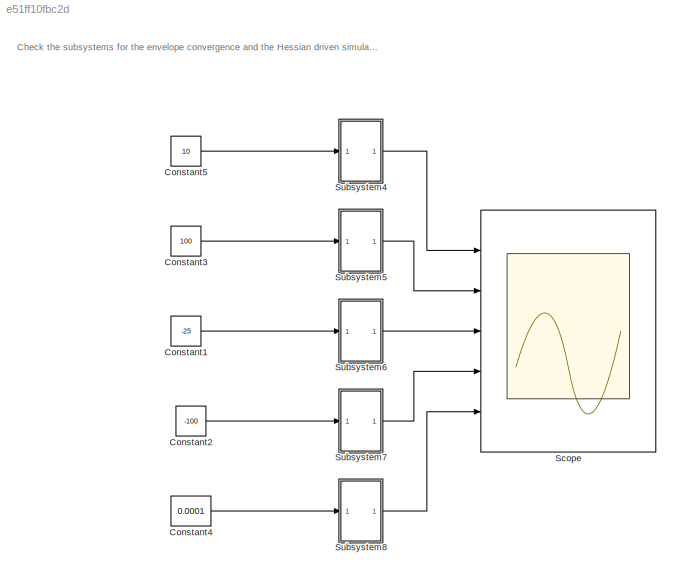
MODEL slx_e51ff10fbc2d
KIND model
CONFIG AbsTol = auto
CONFIG EnableMultiTasking = off
CONFIG FixedStep = .001
CONFIG MaxStep = auto
CONFIG MinStep = auto
CONFIG RelTol = 1e-3
CONFIG SampleTimeConstraint = Unconstrained
CONFIG SolverName = ode1
CONFIG StartTime = 0.0001
CONFIG StopTime = 25
WORKSPACE source: mxarray member
WORKSPACE T: Simulink.Parameter (value not decoded)
BLOCK [Constant] Constant1
  Value = -25
BLOCK [Constant] Constant2
  Value = -100
BLOCK [Constant] Constant3
  Value = 100
BLOCK [Constant] Constant4
  Value = 0.0001
BLOCK [Constant] Constant5
  Value = 10
BLOCK [Scope] Scope
  Floating = off
  NumInputPorts = 5
  Ports = [5]
  ScopeSpecificationString = Simulink.scopes.TimeScopeBlockCfg('CurrentConfiguration', extmgr.ConfigurationSet(extmgr.Configuration('Core','General UI',true),extmgr.Configuration('Core','Source UI',true),extmgr.Configuration('Sources','WiredSimulink',true,'DataLoggingVariableName','ScopeData1'),extmgr.Configuration('Visuals','Time Domain',true,'SerializedDisplays',{struct('MinYLimReal','-4.5293','MaxYLimReal','6.3556','YLabel...<+1501ch>
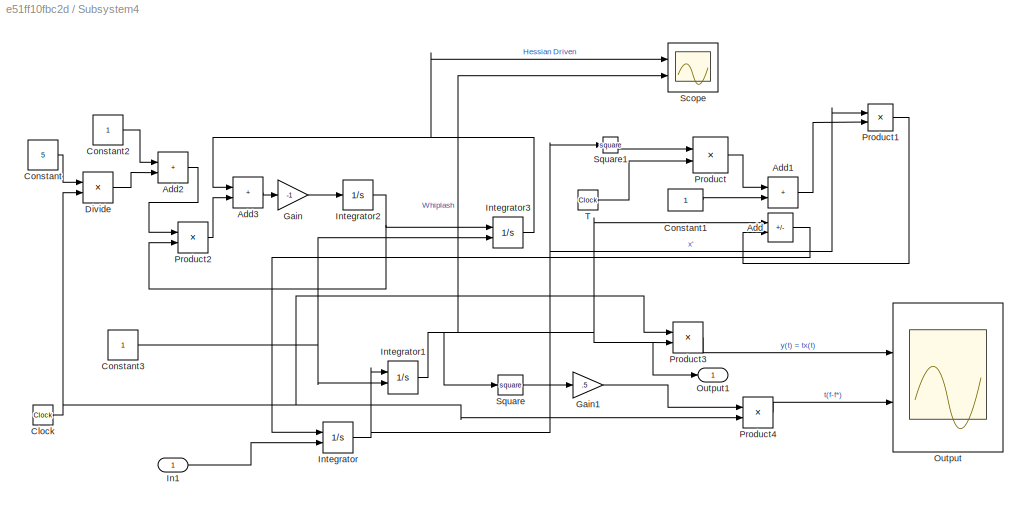
BLOCK [SubSystem] Subsystem4
  Ports = [1, 1]
  RequestExecContextInheritance = off
BLOCK [Sum] Subsystem4/Add
  IconShape = rectangular
  Inputs = --
  Ports = [2, 1]
BLOCK [Sum] Subsystem4/Add1
  IconShape = rectangular
  Ports = [2, 1]
BLOCK [Sum] Subsystem4/Add2
  IconShape = rectangular
  Ports = [2, 1]
BLOCK [Sum] Subsystem4/Add3
  IconShape = rectangular
  Ports = [2, 1]
BLOCK [Clock] Subsystem4/Clock
BLOCK [Constant] Subsystem4/Constant
  Value = 5
BLOCK [Constant] Subsystem4/Constant1
BLOCK [Constant] Subsystem4/Constant2
BLOCK [Constant] Subsystem4/Constant3
BLOCK [Product] Subsystem4/Divide
  Inputs = */
  Ports = [2, 1]
BLOCK [Gain] Subsystem4/Gain
  Gain = -1
BLOCK [Gain] Subsystem4/Gain1
  Gain = .5
BLOCK [Inport] Subsystem4/In1
BLOCK [Integrator] Subsystem4/Integrator
  InitialConditionSource = external
  Ports = [2, 1]
BLOCK [Integrator] Subsystem4/Integrator1
  InitialCondition = 5
  InitialConditionSource = external
  Ports = [2, 1]
BLOCK [Integrator] Subsystem4/Integrator2
  Ports = [1, 1]
BLOCK [Integrator] Subsystem4/Integrator3
  InitialCondition = 5
  InitialConditionSource = external
  Ports = [2, 1]
BLOCK [Scope] Subsystem4/Output
  Floating = off
  NumInputPorts = 2
  Ports = [2]
  ScopeSpecificationString = Simulink.scopes.TimeScopeBlockCfg('CurrentConfiguration', extmgr.ConfigurationSet(extmgr.Configuration('Core','General UI',true,'FigureColor',[1 1 1]),extmgr.Configuration('Core','Source UI',true),extmgr.Configuration('Sources','WiredSimulink',true),extmgr.Configuration('Visuals','Time Domain',true,'SerializedDisplays',{struct('MinYLimReal','-1.41355','MaxYLimReal','8.10596','YLabelReal','x(t)','M...<+1795ch>
BLOCK [Outport] Subsystem4/Output1
BLOCK [Product] Subsystem4/Product
  Ports = [2, 1]
BLOCK [Product] Subsystem4/Product1
  Ports = [2, 1]
BLOCK [Product] Subsystem4/Product2
  Ports = [2, 1]
BLOCK [Product] Subsystem4/Product3
  Ports = [2, 1]
BLOCK [Product] Subsystem4/Product4
  Ports = [2, 1]
BLOCK [Scope] Subsystem4/Scope
  Floating = off
  NumInputPorts = 2
  Ports = [2]
  ScopeSpecificationString = Simulink.scopes.TimeScopeBlockCfg('CurrentConfiguration', extmgr.ConfigurationSet(extmgr.Configuration('Core','General UI',true,'FigureColor',[1 1 1]),extmgr.Configuration('Core','Source UI',true),extmgr.Configuration('Sources','WiredSimulink',true),extmgr.Configuration('Visuals','Time Domain',true,'SerializedDisplays',{struct('MinYLimReal','-0.68499','MaxYLimReal','5.63167','YLabelReal','','MinYL...<+1675ch>  <repeated x4 — deduplicated; at blocks: Scope>
BLOCK [Math] Subsystem4/Square
  Operator = square
  Ports = [1, 1]
BLOCK [Math] Subsystem4/Square1
  Operator = square
  Ports = [1, 1]
BLOCK [Clock] Subsystem4/T
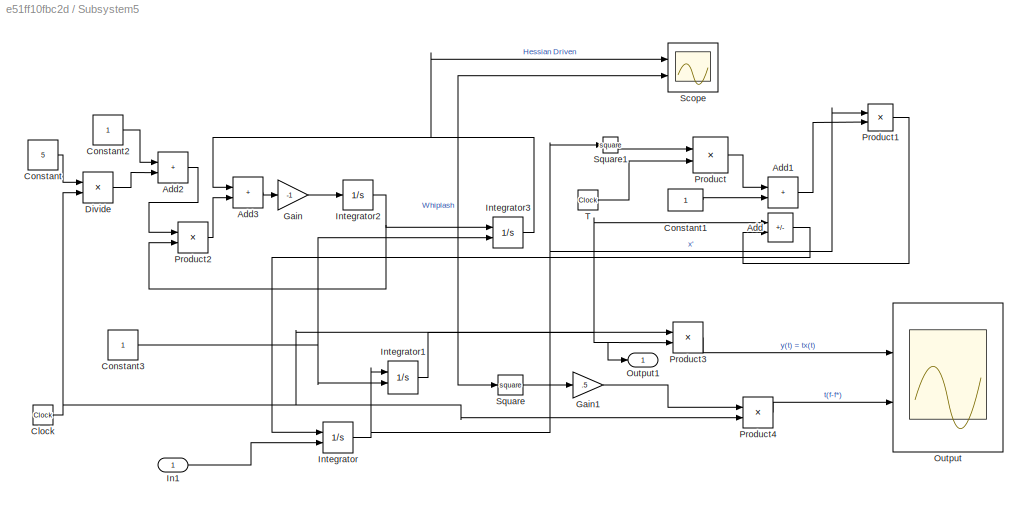
BLOCK [SubSystem] Subsystem5
  Ports = [1, 1]
  RequestExecContextInheritance = off
BLOCK [Sum] Subsystem5/Add
  IconShape = rectangular
  Inputs = --
  Ports = [2, 1]
BLOCK [Sum] Subsystem5/Add1
  IconShape = rectangular
  Ports = [2, 1]
BLOCK [Sum] Subsystem5/Add2
  IconShape = rectangular
  Ports = [2, 1]
BLOCK [Sum] Subsystem5/Add3
  IconShape = rectangular
  Ports = [2, 1]
BLOCK [Clock] Subsystem5/Clock
BLOCK [Constant] Subsystem5/Constant
  Value = 5
BLOCK [Constant] Subsystem5/Constant1
BLOCK [Constant] Subsystem5/Constant2
BLOCK [Constant] Subsystem5/Constant3
BLOCK [Product] Subsystem5/Divide
  Inputs = */
  Ports = [2, 1]
BLOCK [Gain] Subsystem5/Gain
  Gain = -1
BLOCK [Gain] Subsystem5/Gain1
  Gain = .5
BLOCK [Inport] Subsystem5/In1
BLOCK [Integrator] Subsystem5/Integrator
  InitialConditionSource = external
  Ports = [2, 1]
BLOCK [Integrator] Subsystem5/Integrator1
  InitialCondition = 5
  InitialConditionSource = external
  Ports = [2, 1]
BLOCK [Integrator] Subsystem5/Integrator2
  Ports = [1, 1]
BLOCK [Integrator] Subsystem5/Integrator3
  InitialCondition = 5
  InitialConditionSource = external
  Ports = [2, 1]
BLOCK [Scope] Subsystem5/Output
  Floating = off
  NumInputPorts = 2
  Ports = [2]
  ScopeSpecificationString = Simulink.scopes.TimeScopeBlockCfg('CurrentConfiguration', extmgr.ConfigurationSet(extmgr.Configuration('Core','General UI',true,'FigureColor',[1 1 1]),extmgr.Configuration('Core','Source UI',true),extmgr.Configuration('Sources','WiredSimulink',true),extmgr.Configuration('Visuals','Time Domain',true,'SerializedDisplays',{struct('MinYLimReal','-1.41355','MaxYLimReal','8.10596','YLabelReal','x(t)','M...<+1795ch>
BLOCK [Outport] Subsystem5/Output1
BLOCK [Product] Subsystem5/Product
  Ports = [2, 1]
BLOCK [Product] Subsystem5/Product1
  Ports = [2, 1]
BLOCK [Product] Subsystem5/Product2
  Ports = [2, 1]
BLOCK [Product] Subsystem5/Product3
  Ports = [2, 1]
BLOCK [Product] Subsystem5/Product4
  Ports = [2, 1]
BLOCK [Scope] Subsystem5/Scope
  Floating = off
  NumInputPorts = 2
  Ports = [2]
BLOCK [Math] Subsystem5/Square
  Operator = square
  Ports = [1, 1]
BLOCK [Math] Subsystem5/Square1
  Operator = square
  Ports = [1, 1]
BLOCK [Clock] Subsystem5/T
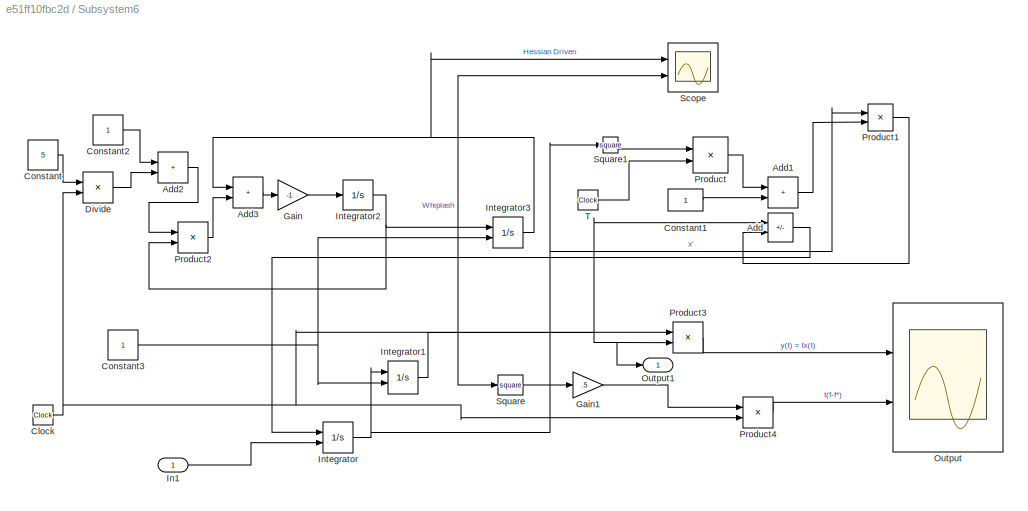
BLOCK [SubSystem] Subsystem6
  Ports = [1, 1]
  RequestExecContextInheritance = off
BLOCK [Sum] Subsystem6/Add
  IconShape = rectangular
  Inputs = --
  Ports = [2, 1]
BLOCK [Sum] Subsystem6/Add1
  IconShape = rectangular
  Ports = [2, 1]
BLOCK [Sum] Subsystem6/Add2
  IconShape = rectangular
  Ports = [2, 1]
BLOCK [Sum] Subsystem6/Add3
  IconShape = rectangular
  Ports = [2, 1]
BLOCK [Clock] Subsystem6/Clock
BLOCK [Constant] Subsystem6/Constant
  Value = 5
BLOCK [Constant] Subsystem6/Constant1
BLOCK [Constant] Subsystem6/Constant2
BLOCK [Constant] Subsystem6/Constant3
BLOCK [Product] Subsystem6/Divide
  Inputs = */
  Ports = [2, 1]
BLOCK [Gain] Subsystem6/Gain
  Gain = -1
BLOCK [Gain] Subsystem6/Gain1
  Gain = .5
BLOCK [Inport] Subsystem6/In1
BLOCK [Integrator] Subsystem6/Integrator
  InitialConditionSource = external
  Ports = [2, 1]
BLOCK [Integrator] Subsystem6/Integrator1
  InitialCondition = 5
  InitialConditionSource = external
  Ports = [2, 1]
BLOCK [Integrator] Subsystem6/Integrator2
  Ports = [1, 1]
BLOCK [Integrator] Subsystem6/Integrator3
  InitialCondition = 5
  InitialConditionSource = external
  Ports = [2, 1]
BLOCK [Scope] Subsystem6/Output
  Floating = off
  NumInputPorts = 2
  Ports = [2]
  ScopeSpecificationString = Simulink.scopes.TimeScopeBlockCfg('CurrentConfiguration', extmgr.ConfigurationSet(extmgr.Configuration('Core','General UI',true,'FigureColor',[1 1 1]),extmgr.Configuration('Core','Source UI',true),extmgr.Configuration('Sources','WiredSimulink',true),extmgr.Configuration('Visuals','Time Domain',true,'SerializedDisplays',{struct('MinYLimReal','-1.41355','MaxYLimReal','8.10596','YLabelReal','x(t)','M...<+1821ch>
BLOCK [Outport] Subsystem6/Output1
BLOCK [Product] Subsystem6/Product
  Ports = [2, 1]
BLOCK [Product] Subsystem6/Product1
  Ports = [2, 1]
BLOCK [Product] Subsystem6/Product2
  Ports = [2, 1]
BLOCK [Product] Subsystem6/Product3
  Ports = [2, 1]
BLOCK [Product] Subsystem6/Product4
  Ports = [2, 1]
BLOCK [Scope] Subsystem6/Scope
  Floating = off
  NumInputPorts = 2
  Ports = [2]
BLOCK [Math] Subsystem6/Square
  Operator = square
  Ports = [1, 1]
BLOCK [Math] Subsystem6/Square1
  Operator = square
  Ports = [1, 1]
BLOCK [Clock] Subsystem6/T
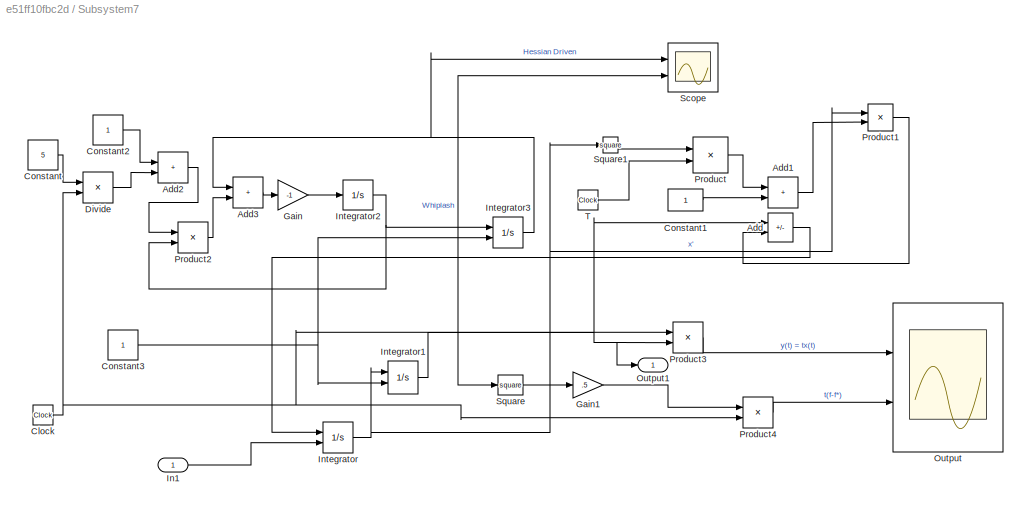
BLOCK [SubSystem] Subsystem7
  Ports = [1, 1]
  RequestExecContextInheritance = off
BLOCK [Sum] Subsystem7/Add
  IconShape = rectangular
  Inputs = --
  Ports = [2, 1]
BLOCK [Sum] Subsystem7/Add1
  IconShape = rectangular
  Ports = [2, 1]
BLOCK [Sum] Subsystem7/Add2
  IconShape = rectangular
  Ports = [2, 1]
BLOCK [Sum] Subsystem7/Add3
  IconShape = rectangular
  Ports = [2, 1]
BLOCK [Clock] Subsystem7/Clock
BLOCK [Constant] Subsystem7/Constant
  Value = 5
BLOCK [Constant] Subsystem7/Constant1
BLOCK [Constant] Subsystem7/Constant2
BLOCK [Constant] Subsystem7/Constant3
BLOCK [Product] Subsystem7/Divide
  Inputs = */
  Ports = [2, 1]
BLOCK [Gain] Subsystem7/Gain
  Gain = -1
BLOCK [Gain] Subsystem7/Gain1
  Gain = .5
BLOCK [Inport] Subsystem7/In1
BLOCK [Integrator] Subsystem7/Integrator
  InitialConditionSource = external
  Ports = [2, 1]
BLOCK [Integrator] Subsystem7/Integrator1
  InitialCondition = 5
  InitialConditionSource = external
  Ports = [2, 1]
BLOCK [Integrator] Subsystem7/Integrator2
  Ports = [1, 1]
BLOCK [Integrator] Subsystem7/Integrator3
  InitialCondition = 5
  InitialConditionSource = external
  Ports = [2, 1]
BLOCK [Scope] Subsystem7/Output
  Floating = off
  NumInputPorts = 2
  Ports = [2]
  ScopeSpecificationString = Simulink.scopes.TimeScopeBlockCfg('CurrentConfiguration', extmgr.ConfigurationSet(extmgr.Configuration('Core','General UI',true,'FigureColor',[1 1 1]),extmgr.Configuration('Core','Source UI',true),extmgr.Configuration('Sources','WiredSimulink',true),extmgr.Configuration('Visuals','Time Domain',true,'SerializedDisplays',{struct('MinYLimReal','-6.21822','MaxYLimReal','7.6537','YLabelReal','x(t)','Mi...<+1817ch>
BLOCK [Outport] Subsystem7/Output1
BLOCK [Product] Subsystem7/Product
  Ports = [2, 1]
BLOCK [Product] Subsystem7/Product1
  Ports = [2, 1]
BLOCK [Product] Subsystem7/Product2
  Ports = [2, 1]
BLOCK [Product] Subsystem7/Product3
  Ports = [2, 1]
BLOCK [Product] Subsystem7/Product4
  Ports = [2, 1]
BLOCK [Scope] Subsystem7/Scope
  Floating = off
  NumInputPorts = 2
  Ports = [2]
BLOCK [Math] Subsystem7/Square
  Operator = square
  Ports = [1, 1]
BLOCK [Math] Subsystem7/Square1
  Operator = square
  Ports = [1, 1]
BLOCK [Clock] Subsystem7/T
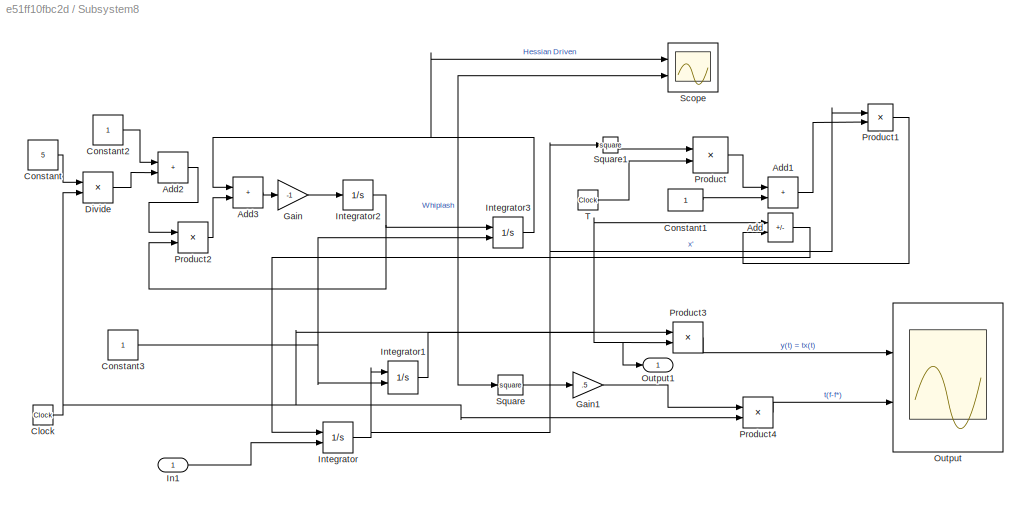
BLOCK [SubSystem] Subsystem8
  Ports = [1, 1]
  RequestExecContextInheritance = off
BLOCK [Sum] Subsystem8/Add
  IconShape = rectangular
  Inputs = --
  Ports = [2, 1]
BLOCK [Sum] Subsystem8/Add1
  IconShape = rectangular
  Ports = [2, 1]
BLOCK [Sum] Subsystem8/Add2
  IconShape = rectangular
  Ports = [2, 1]
BLOCK [Sum] Subsystem8/Add3
  IconShape = rectangular
  Ports = [2, 1]
BLOCK [Clock] Subsystem8/Clock
BLOCK [Constant] Subsystem8/Constant
  Value = 5
BLOCK [Constant] Subsystem8/Constant1
BLOCK [Constant] Subsystem8/Constant2
BLOCK [Constant] Subsystem8/Constant3
BLOCK [Product] Subsystem8/Divide
  Inputs = */
  Ports = [2, 1]
BLOCK [Gain] Subsystem8/Gain
  Gain = -1
BLOCK [Gain] Subsystem8/Gain1
  Gain = .5
BLOCK [Inport] Subsystem8/In1
BLOCK [Integrator] Subsystem8/Integrator
  InitialConditionSource = external
  Ports = [2, 1]
BLOCK [Integrator] Subsystem8/Integrator1
  InitialCondition = 5
  InitialConditionSource = external
  Ports = [2, 1]
BLOCK [Integrator] Subsystem8/Integrator2
  Ports = [1, 1]
BLOCK [Integrator] Subsystem8/Integrator3
  InitialCondition = 5
  InitialConditionSource = external
  Ports = [2, 1]
BLOCK [Scope] Subsystem8/Output
  Floating = off
  NumInputPorts = 2
  Ports = [2]
  ScopeSpecificationString = Simulink.scopes.TimeScopeBlockCfg('CurrentConfiguration', extmgr.ConfigurationSet(extmgr.Configuration('Core','General UI',true,'FigureColor',[1 1 1]),extmgr.Configuration('Core','Source UI',true),extmgr.Configuration('Sources','WiredSimulink',true),extmgr.Configuration('Visuals','Time Domain',true,'SerializedDisplays',{struct('MinYLimReal','-1.41355','MaxYLimReal','8.10596','YLabelReal','x(t)','M...<+1821ch>
BLOCK [Outport] Subsystem8/Output1
BLOCK [Product] Subsystem8/Product
  Ports = [2, 1]
BLOCK [Product] Subsystem8/Product1
  Ports = [2, 1]
BLOCK [Product] Subsystem8/Product2
  Ports = [2, 1]
BLOCK [Product] Subsystem8/Product3
  Ports = [2, 1]
BLOCK [Product] Subsystem8/Product4
  Ports = [2, 1]
BLOCK [Scope] Subsystem8/Scope
  Floating = off
  NumInputPorts = 2
  Ports = [2]
  ScopeSpecificationString = Simulink.scopes.TimeScopeBlockCfg('CurrentConfiguration', extmgr.ConfigurationSet(extmgr.Configuration('Core','General UI',true,'FigureColor',[1 1 1]),extmgr.Configuration('Core','Source UI',true),extmgr.Configuration('Sources','WiredSimulink',true),extmgr.Configuration('Visuals','Time Domain',true,'SerializedDisplays',{struct('MinYLimReal','-0.68499','MaxYLimReal','5.63167','YLabelReal','','MinYL...<+1701ch>
BLOCK [Math] Subsystem8/Square
  Operator = square
  Ports = [1, 1]
BLOCK [Math] Subsystem8/Square1
  Operator = square
  Ports = [1, 1]
BLOCK [Clock] Subsystem8/T
ANNOTATION (root): Check the subsystems for the envelope convergence and the Hessian driven simulations.
LINE Constant1:1 -> Subsystem6:1
LINE Constant2:1 -> Subsystem7:1
LINE Constant3:1 -> Subsystem5:1
LINE Constant4:1 -> Subsystem8:1
LINE Constant5:1 -> Subsystem4:1
LINE Subsystem4/Add1:1 -> Subsystem4/Product1:2
LINE Subsystem4/Add2:1 -> Subsystem4/Product2:1
LINE Subsystem4/Add3:1 -> Subsystem4/Gain:1
LINE Subsystem4/Add:1 -> Subsystem4/Integrator:1
NET Subsystem4/Clock:1 -> Subsystem4/Divide:2, Subsystem4/Product3:1, Subsystem4/Product4:2
LINE Subsystem4/Constant1:1 -> Subsystem4/Add1:2
LINE Subsystem4/Constant2:1 -> Subsystem4/Add2:1
NET Subsystem4/Constant3:1 -> Subsystem4/Integrator1:2, Subsystem4/Integrator3:2
LINE Subsystem4/Constant:1 -> Subsystem4/Divide:1
LINE Subsystem4/Divide:1 -> Subsystem4/Add2:2
LINE Subsystem4/Gain1:1 -> Subsystem4/Product4:1
LINE Subsystem4/Gain:1 -> Subsystem4/Integrator2:1
LINE Subsystem4/In1:1 -> Subsystem4/Integrator:2
NET Subsystem4/Integrator1:1 -> Subsystem4/Add:1, Subsystem4/Output1:1, Subsystem4/Product3:2, Subsystem4/Scope:2, Subsystem4/Square:1
NET Subsystem4/Integrator2:1 -> Subsystem4/Integrator3:1, Subsystem4/Product2:2
NET Subsystem4/Integrator3:1 -> Subsystem4/Add3:1, Subsystem4/Scope:1
NET Subsystem4/Integrator:1 -> Subsystem4/Integrator1:1, Subsystem4/Product1:1, Subsystem4/Square1:1
LINE Subsystem4/Product1:1 -> Subsystem4/Add:2
LINE Subsystem4/Product2:1 -> Subsystem4/Add3:2
LINE Subsystem4/Product3:1 -> Subsystem4/Output:1
LINE Subsystem4/Product4:1 -> Subsystem4/Output:2
LINE Subsystem4/Product:1 -> Subsystem4/Add1:1
LINE Subsystem4/Square1:1 -> Subsystem4/Product:1
LINE Subsystem4/Square:1 -> Subsystem4/Gain1:1
LINE Subsystem4/T:1 -> Subsystem4/Product:2
LINE Subsystem4:1 -> Scope:1
LINE Subsystem5/Add1:1 -> Subsystem5/Product1:2
LINE Subsystem5/Add2:1 -> Subsystem5/Product2:1
LINE Subsystem5/Add3:1 -> Subsystem5/Gain:1
LINE Subsystem5/Add:1 -> Subsystem5/Integrator:1
NET Subsystem5/Clock:1 -> Subsystem5/Divide:2, Subsystem5/Product3:1, Subsystem5/Product4:2
LINE Subsystem5/Constant1:1 -> Subsystem5/Add1:2
LINE Subsystem5/Constant2:1 -> Subsystem5/Add2:1
NET Subsystem5/Constant3:1 -> Subsystem5/Integrator1:2, Subsystem5/Integrator3:2
LINE Subsystem5/Constant:1 -> Subsystem5/Divide:1
LINE Subsystem5/Divide:1 -> Subsystem5/Add2:2
LINE Subsystem5/Gain1:1 -> Subsystem5/Product4:1
LINE Subsystem5/Gain:1 -> Subsystem5/Integrator2:1
LINE Subsystem5/In1:1 -> Subsystem5/Integrator:2
NET Subsystem5/Integrator1:1 -> Subsystem5/Add:1, Subsystem5/Output1:1, Subsystem5/Product3:2, Subsystem5/Scope:2, Subsystem5/Square:1
NET Subsystem5/Integrator2:1 -> Subsystem5/Integrator3:1, Subsystem5/Product2:2
NET Subsystem5/Integrator3:1 -> Subsystem5/Add3:1, Subsystem5/Scope:1
NET Subsystem5/Integrator:1 -> Subsystem5/Integrator1:1, Subsystem5/Product1:1, Subsystem5/Square1:1
LINE Subsystem5/Product1:1 -> Subsystem5/Add:2
LINE Subsystem5/Product2:1 -> Subsystem5/Add3:2
LINE Subsystem5/Product3:1 -> Subsystem5/Output:1
LINE Subsystem5/Product4:1 -> Subsystem5/Output:2
LINE Subsystem5/Product:1 -> Subsystem5/Add1:1
LINE Subsystem5/Square1:1 -> Subsystem5/Product:1
LINE Subsystem5/Square:1 -> Subsystem5/Gain1:1
LINE Subsystem5/T:1 -> Subsystem5/Product:2
LINE Subsystem5:1 -> Scope:2
LINE Subsystem6/Add1:1 -> Subsystem6/Product1:2
LINE Subsystem6/Add2:1 -> Subsystem6/Product2:1
LINE Subsystem6/Add3:1 -> Subsystem6/Gain:1
LINE Subsystem6/Add:1 -> Subsystem6/Integrator:1
NET Subsystem6/Clock:1 -> Subsystem6/Divide:2, Subsystem6/Product3:1, Subsystem6/Product4:2
LINE Subsystem6/Constant1:1 -> Subsystem6/Add1:2
LINE Subsystem6/Constant2:1 -> Subsystem6/Add2:1
NET Subsystem6/Constant3:1 -> Subsystem6/Integrator1:2, Subsystem6/Integrator3:2
LINE Subsystem6/Constant:1 -> Subsystem6/Divide:1
LINE Subsystem6/Divide:1 -> Subsystem6/Add2:2
LINE Subsystem6/Gain1:1 -> Subsystem6/Product4:1
LINE Subsystem6/Gain:1 -> Subsystem6/Integrator2:1
LINE Subsystem6/In1:1 -> Subsystem6/Integrator:2
NET Subsystem6/Integrator1:1 -> Subsystem6/Add:1, Subsystem6/Output1:1, Subsystem6/Product3:2, Subsystem6/Scope:2, Subsystem6/Square:1
NET Subsystem6/Integrator2:1 -> Subsystem6/Integrator3:1, Subsystem6/Product2:2
NET Subsystem6/Integrator3:1 -> Subsystem6/Add3:1, Subsystem6/Scope:1
NET Subsystem6/Integrator:1 -> Subsystem6/Integrator1:1, Subsystem6/Product1:1, Subsystem6/Square1:1
LINE Subsystem6/Product1:1 -> Subsystem6/Add:2
LINE Subsystem6/Product2:1 -> Subsystem6/Add3:2
LINE Subsystem6/Product3:1 -> Subsystem6/Output:1
LINE Subsystem6/Product4:1 -> Subsystem6/Output:2
LINE Subsystem6/Product:1 -> Subsystem6/Add1:1
LINE Subsystem6/Square1:1 -> Subsystem6/Product:1
LINE Subsystem6/Square:1 -> Subsystem6/Gain1:1
LINE Subsystem6/T:1 -> Subsystem6/Product:2
LINE Subsystem6:1 -> Scope:3
LINE Subsystem7/Add1:1 -> Subsystem7/Product1:2
LINE Subsystem7/Add2:1 -> Subsystem7/Product2:1
LINE Subsystem7/Add3:1 -> Subsystem7/Gain:1
LINE Subsystem7/Add:1 -> Subsystem7/Integrator:1
NET Subsystem7/Clock:1 -> Subsystem7/Divide:2, Subsystem7/Product3:1, Subsystem7/Product4:2
LINE Subsystem7/Constant1:1 -> Subsystem7/Add1:2
LINE Subsystem7/Constant2:1 -> Subsystem7/Add2:1
NET Subsystem7/Constant3:1 -> Subsystem7/Integrator1:2, Subsystem7/Integrator3:2
LINE Subsystem7/Constant:1 -> Subsystem7/Divide:1
LINE Subsystem7/Divide:1 -> Subsystem7/Add2:2
LINE Subsystem7/Gain1:1 -> Subsystem7/Product4:1
LINE Subsystem7/Gain:1 -> Subsystem7/Integrator2:1
LINE Subsystem7/In1:1 -> Subsystem7/Integrator:2
NET Subsystem7/Integrator1:1 -> Subsystem7/Add:1, Subsystem7/Output1:1, Subsystem7/Product3:2, Subsystem7/Scope:2, Subsystem7/Square:1
NET Subsystem7/Integrator2:1 -> Subsystem7/Integrator3:1, Subsystem7/Product2:2
NET Subsystem7/Integrator3:1 -> Subsystem7/Add3:1, Subsystem7/Scope:1
NET Subsystem7/Integrator:1 -> Subsystem7/Integrator1:1, Subsystem7/Product1:1, Subsystem7/Square1:1
LINE Subsystem7/Product1:1 -> Subsystem7/Add:2
LINE Subsystem7/Product2:1 -> Subsystem7/Add3:2
LINE Subsystem7/Product3:1 -> Subsystem7/Output:1
LINE Subsystem7/Product4:1 -> Subsystem7/Output:2
LINE Subsystem7/Product:1 -> Subsystem7/Add1:1
LINE Subsystem7/Square1:1 -> Subsystem7/Product:1
LINE Subsystem7/Square:1 -> Subsystem7/Gain1:1
LINE Subsystem7/T:1 -> Subsystem7/Product:2
LINE Subsystem7:1 -> Scope:4
LINE Subsystem8/Add1:1 -> Subsystem8/Product1:2
LINE Subsystem8/Add2:1 -> Subsystem8/Product2:1
LINE Subsystem8/Add3:1 -> Subsystem8/Gain:1
LINE Subsystem8/Add:1 -> Subsystem8/Integrator:1
NET Subsystem8/Clock:1 -> Subsystem8/Divide:2, Subsystem8/Product3:1, Subsystem8/Product4:2
LINE Subsystem8/Constant1:1 -> Subsystem8/Add1:2
LINE Subsystem8/Constant2:1 -> Subsystem8/Add2:1
NET Subsystem8/Constant3:1 -> Subsystem8/Integrator1:2, Subsystem8/Integrator3:2
LINE Subsystem8/Constant:1 -> Subsystem8/Divide:1
LINE Subsystem8/Divide:1 -> Subsystem8/Add2:2
LINE Subsystem8/Gain1:1 -> Subsystem8/Product4:1
LINE Subsystem8/Gain:1 -> Subsystem8/Integrator2:1
LINE Subsystem8/In1:1 -> Subsystem8/Integrator:2
NET Subsystem8/Integrator1:1 -> Subsystem8/Add:1, Subsystem8/Output1:1, Subsystem8/Product3:2, Subsystem8/Scope:2, Subsystem8/Square:1
NET Subsystem8/Integrator2:1 -> Subsystem8/Integrator3:1, Subsystem8/Product2:2
NET Subsystem8/Integrator3:1 -> Subsystem8/Add3:1, Subsystem8/Scope:1
NET Subsystem8/Integrator:1 -> Subsystem8/Integrator1:1, Subsystem8/Product1:1, Subsystem8/Square1:1
LINE Subsystem8/Product1:1 -> Subsystem8/Add:2
LINE Subsystem8/Product2:1 -> Subsystem8/Add3:2
LINE Subsystem8/Product3:1 -> Subsystem8/Output:1
LINE Subsystem8/Product4:1 -> Subsystem8/Output:2
LINE Subsystem8/Product:1 -> Subsystem8/Add1:1
LINE Subsystem8/Square1:1 -> Subsystem8/Product:1
LINE Subsystem8/Square:1 -> Subsystem8/Gain1:1
LINE Subsystem8/T:1 -> Subsystem8/Product:2
LINE Subsystem8:1 -> Scope:5
note: NET lines group one-source signal fan-out (src -> all destinations, sorted); 1:1 wires keep LINE
